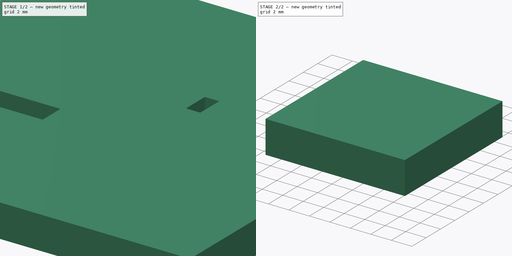
[diagram: build sequence overview — one tinted view per stage of 2, left to right]
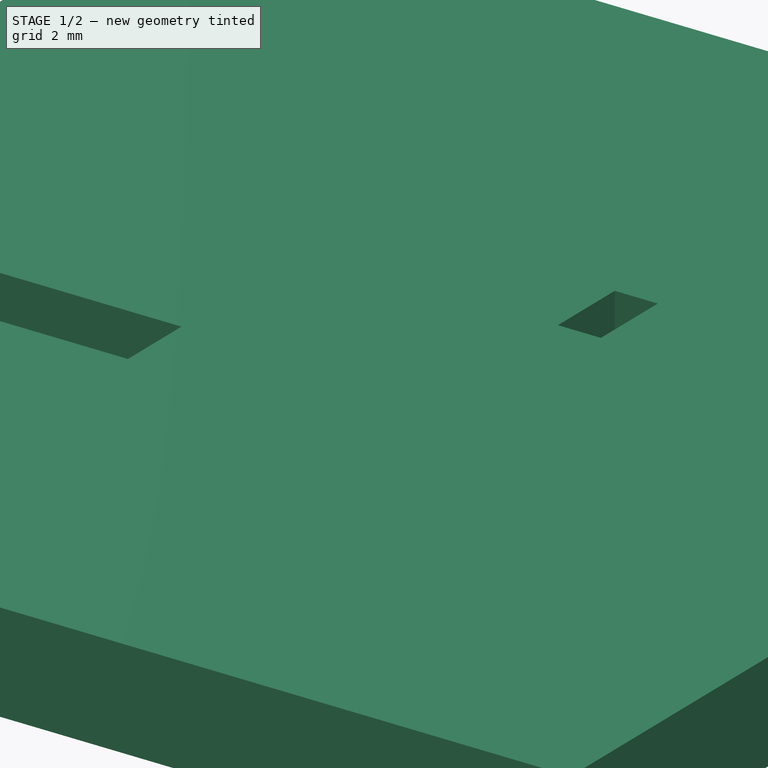
[diagram: stage 1 of 2 — iso view after this stage's code; geometry added in this stage tinted green]
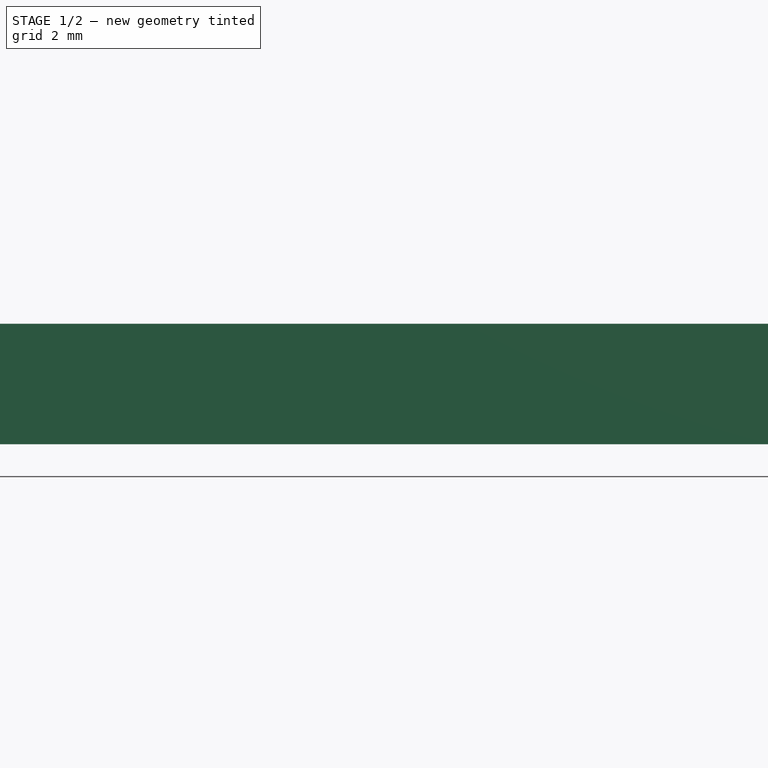
[diagram: stage 1 of 2 — front view after this stage's code; geometry added in this stage tinted green]
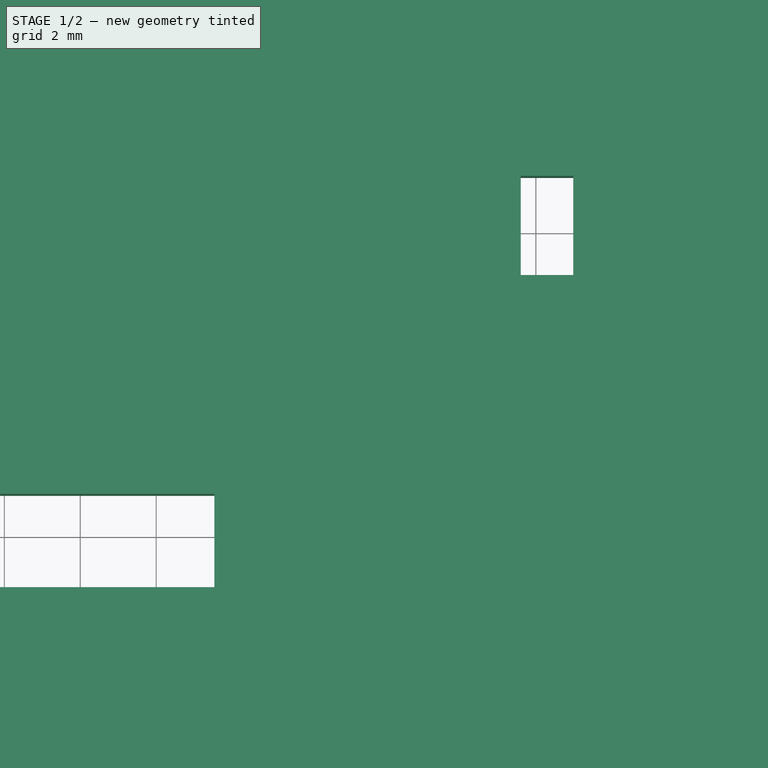
[diagram: stage 1 of 2 — top view after this stage's code; geometry added in this stage tinted green]
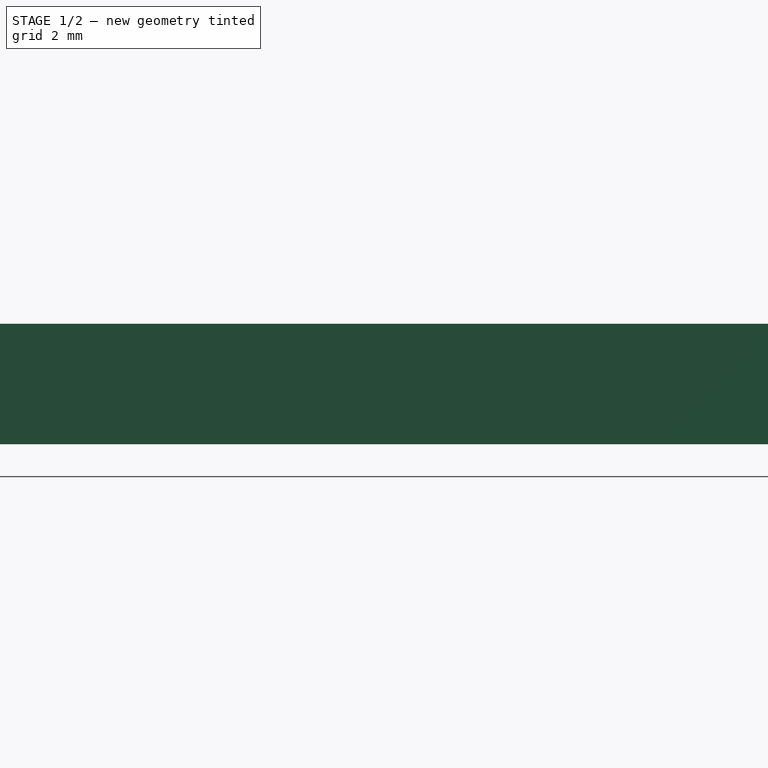
[diagram: stage 1 of 2 — right view after this stage's code; geometry added in this stage tinted green]
FCSTD DOCUMENT  (FreeCAD 1.0R38806 (Git))
Label: skeletonizationTest
License: All rights reserved
LicenseURL: https://en.wikipedia.org/wiki/All_rights_reserved
objects: Sketcher::SketchObject×2, PartDesign::Pad×2, PartDesign::Body×2
note: 12 computed .brp shape members not serialized (recipe doc carries the construction recipe); baked Part::Feature solids carry a one-line shape summary decoded from their .brp

FEATURE [Sketcher::SketchObject] Sketch
  ArcFitTolerance = 1e-06
  AttachmentSupport = -> [XY_Plane]
  FullyConstrained = false
  MakeInternals = false
  MapMode = 5
  sketch-geometry (15):
    g0: LineSegment StartX=-20 StartY=-20 StartZ=0 EndX=20 EndY=-20 EndZ=0
    g1: LineSegment StartX=20 StartY=-20 StartZ=0 EndX=20 EndY=20 EndZ=0
    g2: LineSegment StartX=20 StartY=20 StartZ=0 EndX=-20 EndY=20 EndZ=0
    g3: LineSegment StartX=-20 StartY=20 StartZ=0 EndX=-20 EndY=-20 EndZ=0
    g4: GeomPoint [constr] X=0 Y=0 Z=0
    g5: LineSegment StartX=3.60138 StartY=5.4553 StartZ=0 EndX=3.60138 EndY=2.84264 EndZ=0
    g6: LineSegment StartX=3.60138 StartY=2.84264 StartZ=0 EndX=4.98455 EndY=2.84264 EndZ=0
    g7: LineSegment StartX=4.98455 StartY=2.84264 StartZ=0 EndX=4.98455 EndY=5.4553 EndZ=0
    g8: LineSegment StartX=4.98455 StartY=5.4553 StartZ=0 EndX=3.60138 EndY=5.4553 EndZ=0
    g9: GeomPoint [constr] X=4.29296 Y=4.14897 Z=0
    g10: LineSegment StartX=-11.0756 StartY=-2.92057 StartZ=0 EndX=-11.0756 EndY=-5.37954 EndZ=0
    g11: LineSegment StartX=-11.0756 StartY=-5.37954 StartZ=0 EndX=-4.46712 EndY=-5.37954 EndZ=0
    g12: LineSegment StartX=-4.46712 StartY=-5.37954 StartZ=0 EndX=-4.46712 EndY=-2.92057 EndZ=0
    g13: LineSegment StartX=-4.46712 StartY=-2.92057 StartZ=0 EndX=-11.0756 EndY=-2.92057 EndZ=0
    g14: GeomPoint [constr] X=-7.77137 Y=-4.15006 Z=0
  constraints (30):
    c: Coincident(g0,g1)
    c: Coincident(g1,g2)
    c: Coincident(g2,g3)
    c: Coincident(g3,g0)
    c: Horizontal(g0)
    c: Horizontal(g2)
    c: Vertical(g1)
    c: Vertical(g3)
    c: Symmetric(g2,g0,g4)
    c: Distance(g1,g3) = 40
    c: Distance(g0,g2) = 40
    c: Coincident(g4,g-1)
    c: Coincident(g5,g6)
    c: Coincident(g6,g7)
    c: Coincident(g7,g8)
    c: Coincident(g8,g5)
    c: Vertical(g5)
    c: Vertical(g7)
    c: Horizontal(g6)
    c: Horizontal(g8)
    c: Symmetric(g7,g5,g9)
    c: Coincident(g10,g11)
    c: Coincident(g11,g12)
    c: Coincident(g12,g13)
    c: Coincident(g13,g10)
    c: Vertical(g10)
    c: Vertical(g12)
    c: Horizontal(g11)
    c: Horizontal(g13)
    c: Symmetric(g12,g10,g14)
FEATURE [PartDesign::Pad] Pad
  Direction = (0,0,1)
  Length = 3.175
  Length2 = 10
  Profile = -> Sketch
  ReferenceAxis = -> Sketch [N_Axis]
  Refine = true
  Suppressed = false
  Type = 0
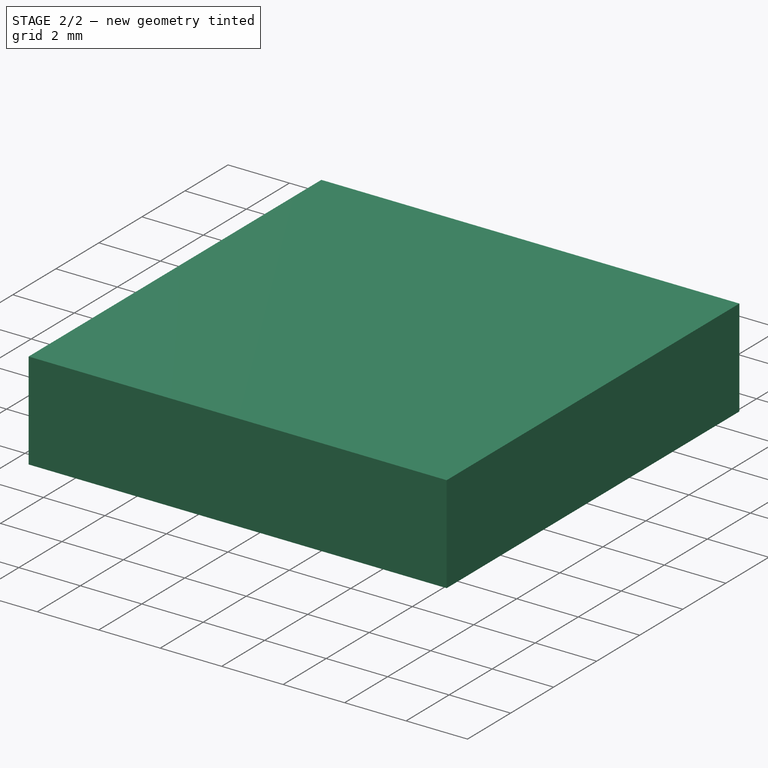
[diagram: stage 2 of 2 — iso view after this stage's code; geometry added in this stage tinted green]
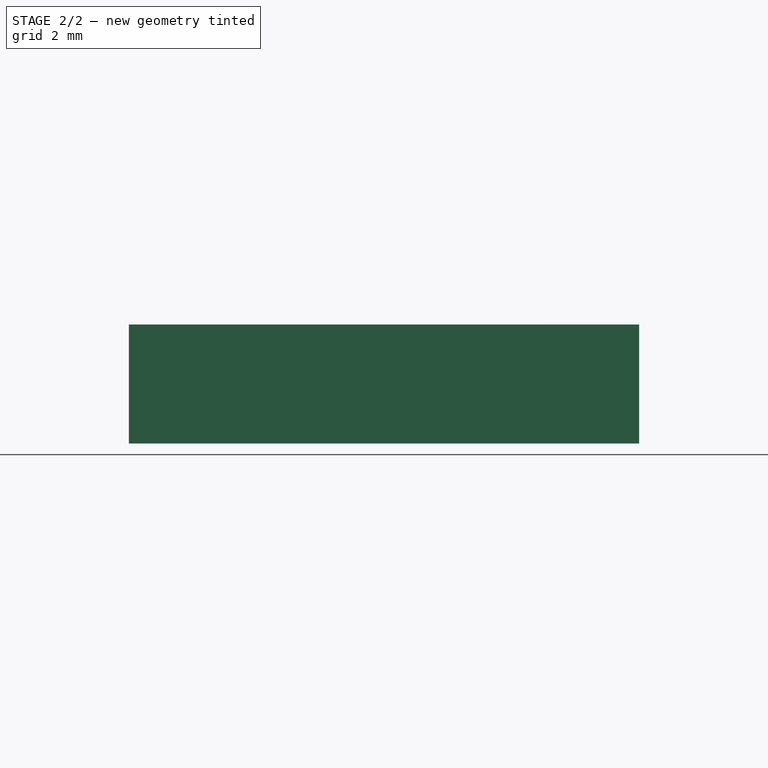
[diagram: stage 2 of 2 — front view after this stage's code; geometry added in this stage tinted green]
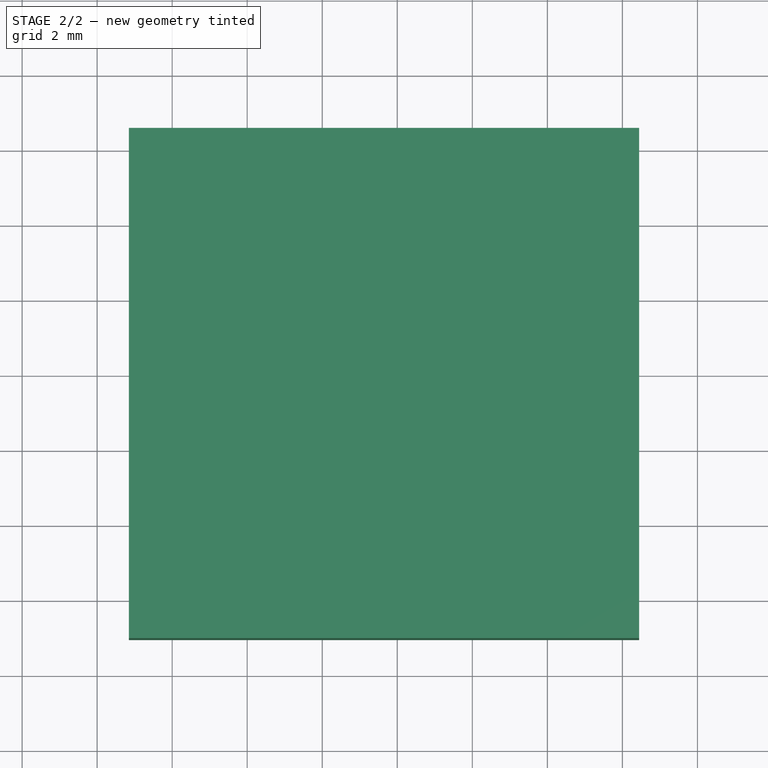
[diagram: stage 2 of 2 — top view after this stage's code; geometry added in this stage tinted green]
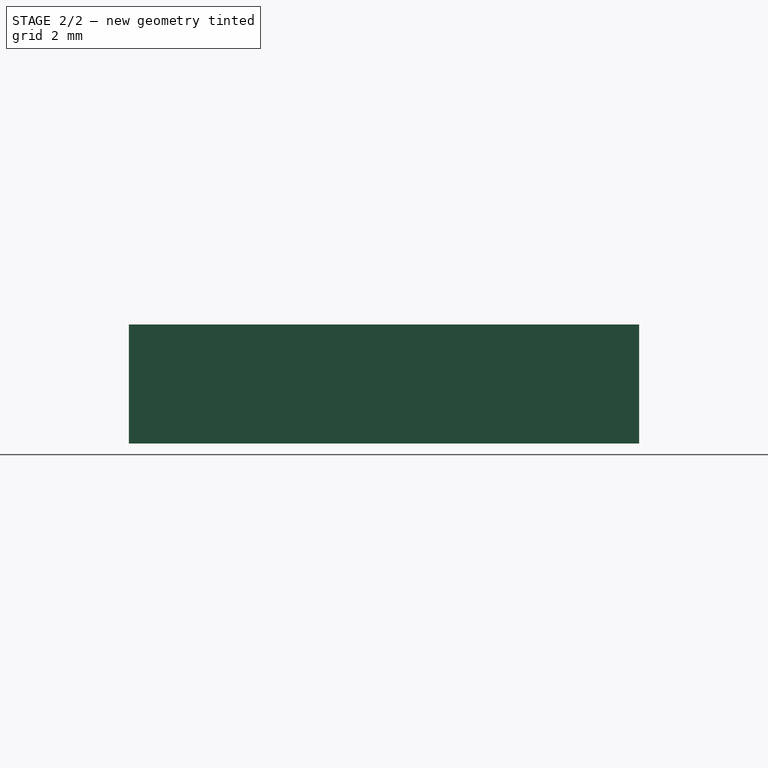
[diagram: stage 2 of 2 — right view after this stage's code; geometry added in this stage tinted green]
FEATURE [PartDesign::Body] Body
  AllowCompound = false
  Group = -> [Sketch,Pad]
  Origin = -> Origin
  Tip = -> Pad
FEATURE [Sketcher::SketchObject] Sketch001
  ArcFitTolerance = 1e-06
  AttachmentSupport = -> [XY_Plane001]
  FullyConstrained = false
  MakeInternals = false
  MapMode = 5
  sketch-geometry (4):
    g0: LineSegment StartX=-25.1544 StartY=-25.0381 StartZ=0 EndX=-11.5535 EndY=-25.0381 EndZ=0
    g1: LineSegment StartX=-11.5535 StartY=-25.0381 StartZ=0 EndX=-11.5535 EndY=-11.4372 EndZ=0
    g2: LineSegment StartX=-11.5535 StartY=-11.4372 StartZ=0 EndX=-25.1544 EndY=-11.4372 EndZ=0
    g3: LineSegment StartX=-25.1544 StartY=-11.4372 StartZ=0 EndX=-25.1544 EndY=-25.0381 EndZ=0
  constraints (9):
    c: Coincident(g1,g0)
    c: Coincident(g1,g2)
    c: Coincident(g2,g3)
    c: Coincident(g3,g0)
    c: Angle(g2,g1) = 1.5708
    c: Equal(g2,g1)
    c: Equal(g0,g3)
    c: Parallel(g0,g2)
    c: Angle(g1,g-2) = 0
FEATURE [PartDesign::Pad] Pad001
  Direction = (0,0,1)
  Length = 10
  Length2 = 10
  Profile = -> Sketch001
  ReferenceAxis = -> Sketch001 [N_Axis]
  Refine = true
  Suppressed = false
  Type = 3
  UpToFace = -> Pad [Face14]
FEATURE [PartDesign::Body] Body001
  AllowCompound = false
  Group = -> [Sketch001,Pad001]
  Origin = -> Origin001
  Tip = -> Pad001
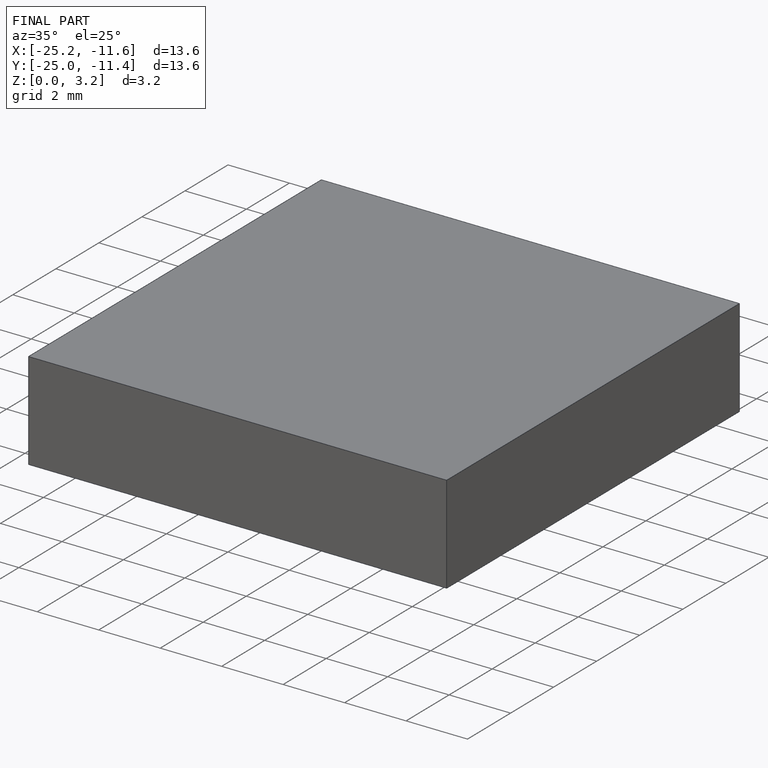
[diagram: finished part — iso view with bounding-box wireframe]
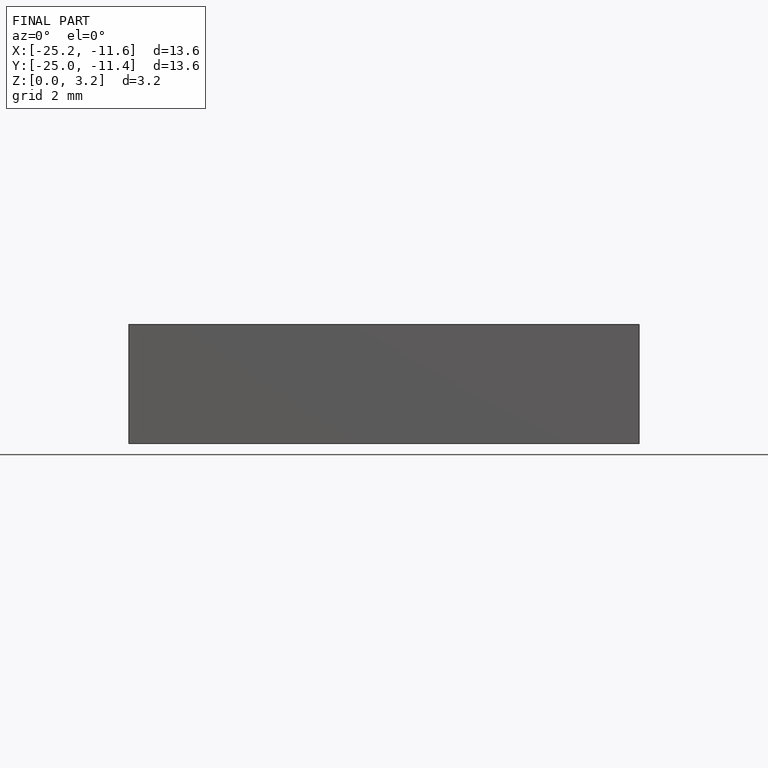
[diagram: finished part — front view with bounding-box wireframe]
